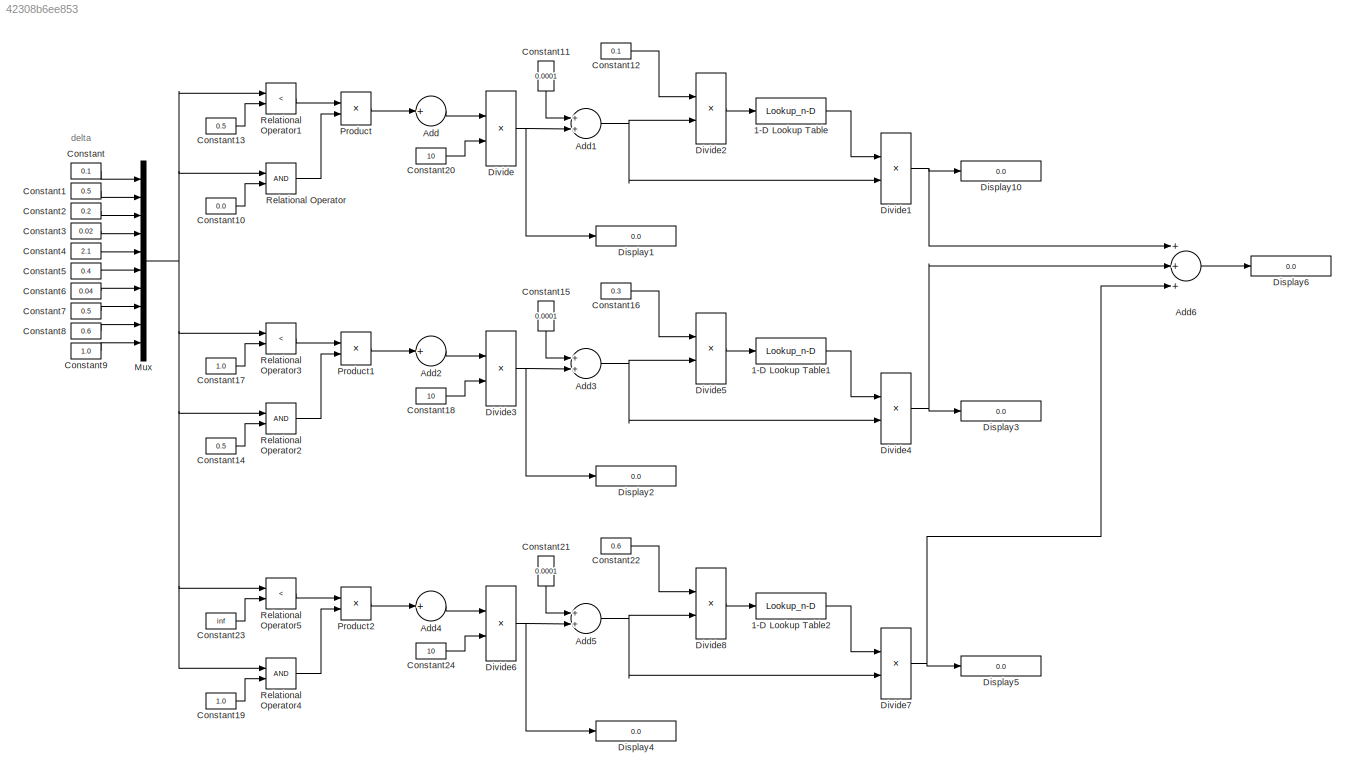
MODEL slx_42308b6ee853
KIND model
CONFIG AbsTol = auto
CONFIG EnableMultiTasking = off
CONFIG FixedStep = auto
CONFIG MaxStep = auto
CONFIG MinStep = auto
CONFIG RelTol = 1e-3
CONFIG SampleTimeConstraint = Unconstrained
CONFIG Solver = VariableStepAuto
CONFIG SolverName = VariableStepAuto
CONFIG StartTime = 0.0
CONFIG StopTime = 10.0
BLOCK [Lookup_n-D] 1-D Lookup Table
  BreakpointsForDimension1 = [0:1]
  BreakpointsForDimension1FirstPoint = 0
  BreakpointsForDimension1Spacing = 0.1
  BreakpointsSpecification = Even spacing
  InternalRulePriority = Speed
  NumberOfTableDimensions = 1
  Ports = [1, 1]
  RndMeth = Simplest
  Table = log([0:0.1:10])
BLOCK [Lookup_n-D] 1-D Lookup Table1
  BreakpointsForDimension1 = [0:1]
  BreakpointsForDimension1FirstPoint = 0
  BreakpointsForDimension1Spacing = 0.1
  BreakpointsSpecification = Even spacing
  InternalRulePriority = Speed
  NumberOfTableDimensions = 1
  Ports = [1, 1]
  RndMeth = Simplest
  Table = log([0:0.1:10])
BLOCK [Lookup_n-D] 1-D Lookup Table2
  BreakpointsForDimension1 = [0:1]
  BreakpointsForDimension1FirstPoint = 0
  BreakpointsForDimension1Spacing = 0.1
  BreakpointsSpecification = Even spacing
  InternalRulePriority = Speed
  NumberOfTableDimensions = 1
  Ports = [1, 1]
  RndMeth = Simplest
  Table = log([0:0.1:10])
BLOCK [Sum] Add
  InputSameDT = off
  Inputs = +
  OutDataTypeStr = Inherit: Inherit via internal rule
  Ports = [1, 1]
  SaturateOnIntegerOverflow = off
BLOCK [Sum] Add1
  InputSameDT = off
  OutDataTypeStr = Inherit: Inherit via internal rule
  Ports = [2, 1]
  SaturateOnIntegerOverflow = off
BLOCK [Sum] Add2
  InputSameDT = off
  Inputs = +
  OutDataTypeStr = Inherit: Inherit via internal rule
  Ports = [1, 1]
  SaturateOnIntegerOverflow = off
BLOCK [Sum] Add3
  InputSameDT = off
  OutDataTypeStr = Inherit: Inherit via internal rule
  Ports = [2, 1]
  SaturateOnIntegerOverflow = off
BLOCK [Sum] Add4
  InputSameDT = off
  Inputs = +
  OutDataTypeStr = Inherit: Inherit via internal rule
  Ports = [1, 1]
  SaturateOnIntegerOverflow = off
BLOCK [Sum] Add5
  InputSameDT = off
  OutDataTypeStr = Inherit: Inherit via internal rule
  Ports = [2, 1]
  SaturateOnIntegerOverflow = off
BLOCK [Sum] Add6
  InputSameDT = off
  Inputs = +++
  OutDataTypeStr = Inherit: Inherit via internal rule
  Ports = [3, 1]
  SaturateOnIntegerOverflow = off
BLOCK [Constant] Constant
  Value = 0.1
BLOCK [Constant] Constant1
  Value = 0.5
BLOCK [Constant] Constant10
  Value = 0.0
BLOCK [Constant] Constant11
  Value = 0.0001
BLOCK [Constant] Constant12
  Value = 0.1
BLOCK [Constant] Constant13
  Value = 0.5
BLOCK [Constant] Constant14
  Value = 0.5
BLOCK [Constant] Constant15
  Value = 0.0001
BLOCK [Constant] Constant16
  Value = 0.3
BLOCK [Constant] Constant17
  Value = 1.0
BLOCK [Constant] Constant18
  Value = 10
BLOCK [Constant] Constant19
  Value = 1.0
BLOCK [Constant] Constant2
  Value = 0.2
BLOCK [Constant] Constant20
  Value = 10
BLOCK [Constant] Constant21
  Value = 0.0001
BLOCK [Constant] Constant22
  Value = 0.6
BLOCK [Constant] Constant23
  Value = inf
BLOCK [Constant] Constant24
  Value = 10
BLOCK [Constant] Constant3
  Value = 0.02
BLOCK [Constant] Constant4
  Value = 2.1
BLOCK [Constant] Constant5
  Value = 0.4
BLOCK [Constant] Constant6
  Value = 0.04
BLOCK [Constant] Constant7
  Value = 0.5
BLOCK [Constant] Constant8
  Value = 0.6
BLOCK [Constant] Constant9
  Value = 1.0
BLOCK [Display] Display1
  Decimation = 1
  Ports = [1]
BLOCK [Display] Display10
  Decimation = 1
  Ports = [1]
BLOCK [Display] Display2
  Decimation = 1
  Ports = [1]
BLOCK [Display] Display3
  Decimation = 1
  Ports = [1]
BLOCK [Display] Display4
  Decimation = 1
  Ports = [1]
BLOCK [Display] Display5
  Decimation = 1
  Ports = [1]
BLOCK [Display] Display6
  Decimation = 1
  Ports = [1]
BLOCK [Product] Divide
  InputSameDT = off
  Inputs = */
  OutDataTypeStr = Inherit: Inherit via internal rule
  Ports = [2, 1]
  RndMeth = Floor
  SaturateOnIntegerOverflow = off
BLOCK [Product] Divide1
  InputSameDT = off
  Inputs = **
  OutDataTypeStr = Inherit: Inherit via internal rule
  Ports = [2, 1]
  RndMeth = Floor
  SaturateOnIntegerOverflow = off
BLOCK [Product] Divide2
  InputSameDT = off
  Inputs = /*
  OutDataTypeStr = Inherit: Inherit via internal rule
  Ports = [2, 1]
  RndMeth = Floor
  SaturateOnIntegerOverflow = off
BLOCK [Product] Divide3
  InputSameDT = off
  Inputs = */
  OutDataTypeStr = Inherit: Inherit via internal rule
  Ports = [2, 1]
  RndMeth = Floor
  SaturateOnIntegerOverflow = off
BLOCK [Product] Divide4
  InputSameDT = off
  Inputs = **
  OutDataTypeStr = Inherit: Inherit via internal rule
  Ports = [2, 1]
  RndMeth = Floor
  SaturateOnIntegerOverflow = off
BLOCK [Product] Divide5
  InputSameDT = off
  Inputs = /*
  OutDataTypeStr = Inherit: Inherit via internal rule
  Ports = [2, 1]
  RndMeth = Floor
  SaturateOnIntegerOverflow = off
BLOCK [Product] Divide6
  InputSameDT = off
  Inputs = */
  OutDataTypeStr = Inherit: Inherit via internal rule
  Ports = [2, 1]
  RndMeth = Floor
  SaturateOnIntegerOverflow = off
BLOCK [Product] Divide7
  InputSameDT = off
  Inputs = **
  OutDataTypeStr = Inherit: Inherit via internal rule
  Ports = [2, 1]
  RndMeth = Floor
  SaturateOnIntegerOverflow = off
BLOCK [Product] Divide8
  InputSameDT = off
  Inputs = /*
  OutDataTypeStr = Inherit: Inherit via internal rule
  Ports = [2, 1]
  RndMeth = Floor
  SaturateOnIntegerOverflow = off
BLOCK [Mux] Mux
  DisplayOption = bar
  Inputs = 10
  Ports = [10, 1]
BLOCK [Product] Product
  InputSameDT = off
  OutDataTypeStr = Inherit: Inherit via internal rule
  Ports = [2, 1]
  RndMeth = Floor
  SaturateOnIntegerOverflow = off
BLOCK [Product] Product1
  InputSameDT = off
  OutDataTypeStr = Inherit: Inherit via internal rule
  Ports = [2, 1]
  RndMeth = Floor
  SaturateOnIntegerOverflow = off
BLOCK [Product] Product2
  InputSameDT = off
  OutDataTypeStr = Inherit: Inherit via internal rule
  Ports = [2, 1]
  RndMeth = Floor
  SaturateOnIntegerOverflow = off
BLOCK [RelationalOperator] Relational Operator
  InputSameDT = off
  OutDataTypeStr = boolean
  Ports = [2, 1]
  RndMeth = Simplest
BLOCK [RelationalOperator] Relational Operator1
  InputSameDT = off
  Operator = <
  OutDataTypeStr = boolean
  Ports = [2, 1]
  RndMeth = Simplest
BLOCK [RelationalOperator] Relational Operator2
  InputSameDT = off
  OutDataTypeStr = boolean
  Ports = [2, 1]
  RndMeth = Simplest
BLOCK [RelationalOperator] Relational Operator3
  InputSameDT = off
  Operator = <
  OutDataTypeStr = boolean
  Ports = [2, 1]
  RndMeth = Simplest
BLOCK [RelationalOperator] Relational Operator4
  InputSameDT = off
  OutDataTypeStr = boolean
  Ports = [2, 1]
  RndMeth = Simplest
BLOCK [RelationalOperator] Relational Operator5
  InputSameDT = off
  Operator = <
  OutDataTypeStr = boolean
  Ports = [2, 1]
  RndMeth = Simplest
ANNOTATION (root): delta
LINE 1-D Lookup Table1:1 -> Divide4:1
LINE 1-D Lookup Table2:1 -> Divide7:1
LINE 1-D Lookup Table:1 -> Divide1:1
NET Add1:1 -> Divide1:2, Divide2:2
LINE Add2:1 -> Divide3:1
NET Add3:1 -> Divide4:2, Divide5:2
LINE Add4:1 -> Divide6:1
NET Add5:1 -> Divide7:2, Divide8:2
LINE Add6:1 -> Display6:1
LINE Add:1 -> Divide:1
LINE Constant10:1 -> Relational Operator:2
LINE Constant11:1 -> Add1:1
LINE Constant12:1 -> Divide2:1
LINE Constant13:1 -> Relational Operator1:2
LINE Constant14:1 -> Relational Operator2:2
LINE Constant15:1 -> Add3:1
LINE Constant16:1 -> Divide5:1
LINE Constant17:1 -> Relational Operator3:2
LINE Constant18:1 -> Divide3:2
LINE Constant19:1 -> Relational Operator4:2
LINE Constant1:1 -> Mux:2
LINE Constant20:1 -> Divide:2
LINE Constant21:1 -> Add5:1
LINE Constant22:1 -> Divide8:1
LINE Constant23:1 -> Relational Operator5:2
LINE Constant24:1 -> Divide6:2
LINE Constant2:1 -> Mux:3
LINE Constant3:1 -> Mux:4
LINE Constant4:1 -> Mux:5
LINE Constant5:1 -> Mux:6
LINE Constant6:1 -> Mux:7
LINE Constant7:1 -> Mux:8
LINE Constant8:1 -> Mux:9
LINE Constant9:1 -> Mux:10
LINE Constant:1 -> Mux:1
NET Divide1:1 -> Add6:1, Display10:1
LINE Divide2:1 -> 1-D Lookup Table:1
NET Divide3:1 -> Add3:2, Display2:1
NET Divide4:1 -> Add6:2, Display3:1
LINE Divide5:1 -> 1-D Lookup Table1:1
NET Divide6:1 -> Add5:2, Display4:1
NET Divide7:1 -> Add6:3, Display5:1
LINE Divide8:1 -> 1-D Lookup Table2:1
NET Divide:1 -> Add1:2, Display1:1
NET Mux:1 -> Relational Operator1:1, Relational Operator2:1, Relational Operator3:1, Relational Operator4:1, Relational Operator5:1, Relational Operator:1
LINE Product1:1 -> Add2:1
LINE Product2:1 -> Add4:1
LINE Product:1 -> Add:1
LINE Relational Operator1:1 -> Product:1
LINE Relational Operator2:1 -> Product1:2
LINE Relational Operator3:1 -> Product1:1
LINE Relational Operator4:1 -> Product2:2
LINE Relational Operator5:1 -> Product2:1
LINE Relational Operator:1 -> Product:2
note: NET lines group one-source signal fan-out (src -> all destinations, sorted); 1:1 wires keep LINE
